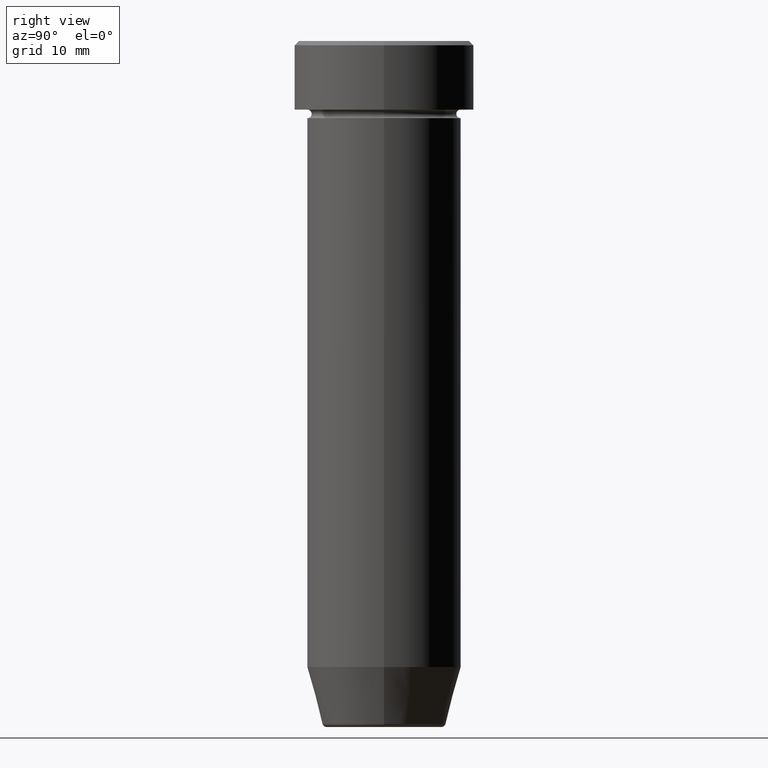
[diagram: clean part render]
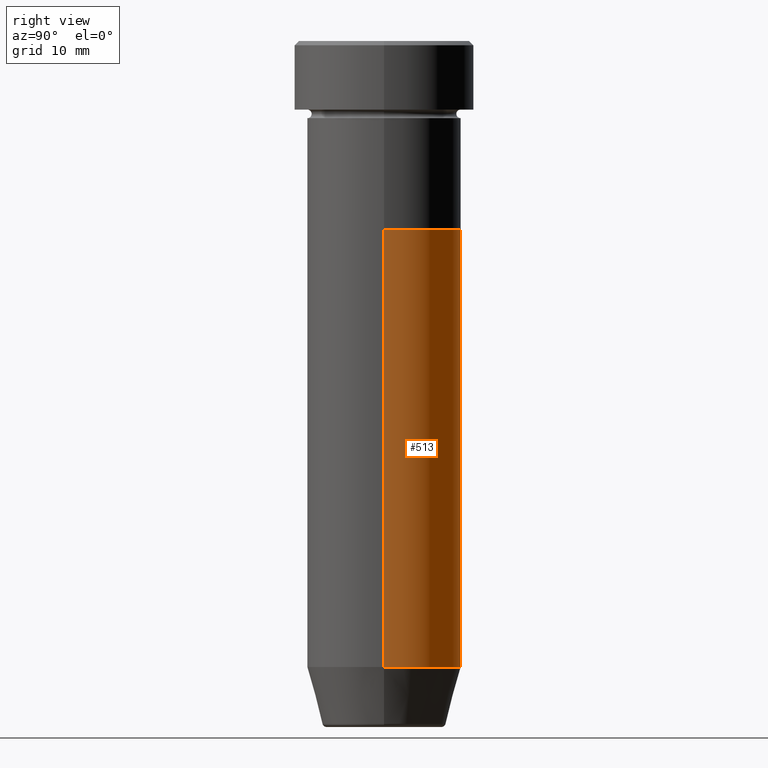
[diagram: same view with one face highlighted and labeled with its STEP entity id]
A machine part, right view. The second image highlights one B-rep face of the part: STEP entity #513.
In plain terms, the highlighted cylindrical surface (partial cylindrical patch) has radius 9 mm, axis along (-0, -0, 1).
Its self-contained STEP definition (entity closure, byte-faithful):
#31 = CARTESIAN_POINT ( 'NONE',  ( 0.000000000000000000, 0.000000000000000000, 0.000000000000000000 ) ) ;
#32 = VERTEX_POINT ( 'NONE', #577 ) ;
#58 = ORIENTED_EDGE ( 'NONE', *, *, #217, .T. ) ;
#79 = EDGE_LOOP ( 'NONE', ( #58, #372, #93, #98 ) ) ;
#80 = VECTOR ( 'NONE', #146, 1000.000000000000000 ) ;
#89 = CARTESIAN_POINT ( 'NONE',  ( 9.000000000000000000, 0.000000000000000000, -22.00000000000000000 ) ) ;
#93 = ORIENTED_EDGE ( 'NONE', *, *, #467, .F. ) ;
#98 = ORIENTED_EDGE ( 'NONE', *, *, #568, .F. ) ;
#104 = DIRECTION ( 'NONE',  ( 1.000000000000000000, 0.000000000000000000, 0.000000000000000000 ) ) ;
#132 = CYLINDRICAL_SURFACE ( 'NONE', #334, 9.000000000000000000 ) ;
#133 = DIRECTION ( 'NONE',  ( 1.000000000000000000, 0.000000000000000000, 0.000000000000000000 ) ) ;
#146 = DIRECTION ( 'NONE',  ( -0.000000000000000000, -0.000000000000000000, 1.000000000000000000 ) ) ;
#179 = FACE_OUTER_BOUND ( 'NONE', #79, .T. ) ;
#180 = DIRECTION ( 'NONE',  ( -0.000000000000000000, -0.000000000000000000, 1.000000000000000000 ) ) ;
#189 = VERTEX_POINT ( 'NONE', #542 ) ;
#190 = CARTESIAN_POINT ( 'NONE',  ( 9.000000000000000000, 0.000000000000000000, 0.000000000000000000 ) ) ;
#197 = CARTESIAN_POINT ( 'NONE',  ( -9.000000000000000000, 1.102182119232617714E-15, 0.000000000000000000 ) ) ;
#199 = LINE ( 'NONE', #197, #357 ) ;
#200 = EDGE_CURVE ( 'NONE', #32, #189, #199, .T. ) ;
#217 = EDGE_CURVE ( 'NONE', #408, #32, #529, .T. ) ;
#222 = CARTESIAN_POINT ( 'NONE',  ( 0.000000000000000000, 0.000000000000000000, -22.00000000000000000 ) ) ;
#226 = CARTESIAN_POINT ( 'NONE',  ( 9.000000000000000000, 0.000000000000000000, -73.00000000000000000 ) ) ;
#246 = AXIS2_PLACEMENT_3D ( 'NONE', #432, #515, #104 ) ;
#324 = LINE ( 'NONE', #190, #80 ) ;
#334 = AXIS2_PLACEMENT_3D ( 'NONE', #31, #543, #133 ) ;
#357 = VECTOR ( 'NONE', #475, 1000.000000000000000 ) ;
#372 = ORIENTED_EDGE ( 'NONE', *, *, #200, .T. ) ;
#408 = VERTEX_POINT ( 'NONE', #226 ) ;
#416 = VERTEX_POINT ( 'NONE', #89 ) ;
#430 = AXIS2_PLACEMENT_3D ( 'NONE', #222, #180, #589 ) ;
#432 = CARTESIAN_POINT ( 'NONE',  ( 0.000000000000000000, 0.000000000000000000, -73.00000000000000000 ) ) ;
#467 = EDGE_CURVE ( 'NONE', #416, #189, #597, .T. ) ;
#475 = DIRECTION ( 'NONE',  ( -0.000000000000000000, -0.000000000000000000, 1.000000000000000000 ) ) ;
#513 = ADVANCED_FACE ( 'NONE', ( #179 ), #132, .T. ) ;
#515 = DIRECTION ( 'NONE',  ( -0.000000000000000000, -0.000000000000000000, 1.000000000000000000 ) ) ;
#529 = CIRCLE ( 'NONE', #246, 9.000000000000000000 ) ;
#542 = CARTESIAN_POINT ( 'NONE',  ( -9.000000000000000000, 1.102182119232617714E-15, -22.00000000000000000 ) ) ;
#543 = DIRECTION ( 'NONE',  ( -0.000000000000000000, -0.000000000000000000, 1.000000000000000000 ) ) ;
#568 = EDGE_CURVE ( 'NONE', #408, #416, #324, .T. ) ;
#577 = CARTESIAN_POINT ( 'NONE',  ( -9.000000000000000000, 1.102182119232617714E-15, -73.00000000000000000 ) ) ;
#589 = DIRECTION ( 'NONE',  ( 1.000000000000000000, 0.000000000000000000, 0.000000000000000000 ) ) ;
#597 = CIRCLE ( 'NONE', #430, 9.000000000000000000 ) ;